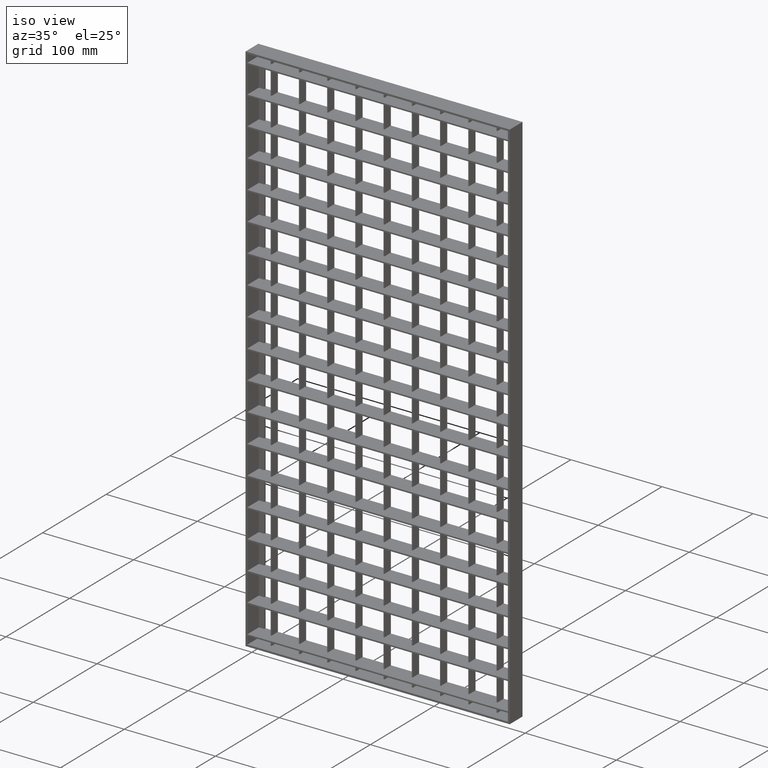
[diagram: clean part render]
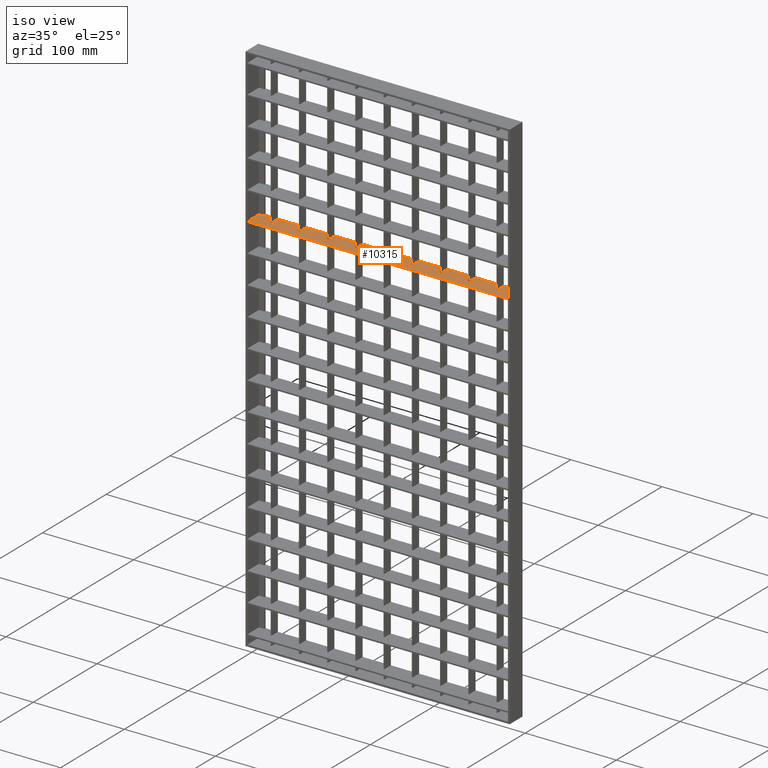
[diagram: same view with one face highlighted and labeled with its STEP entity id]
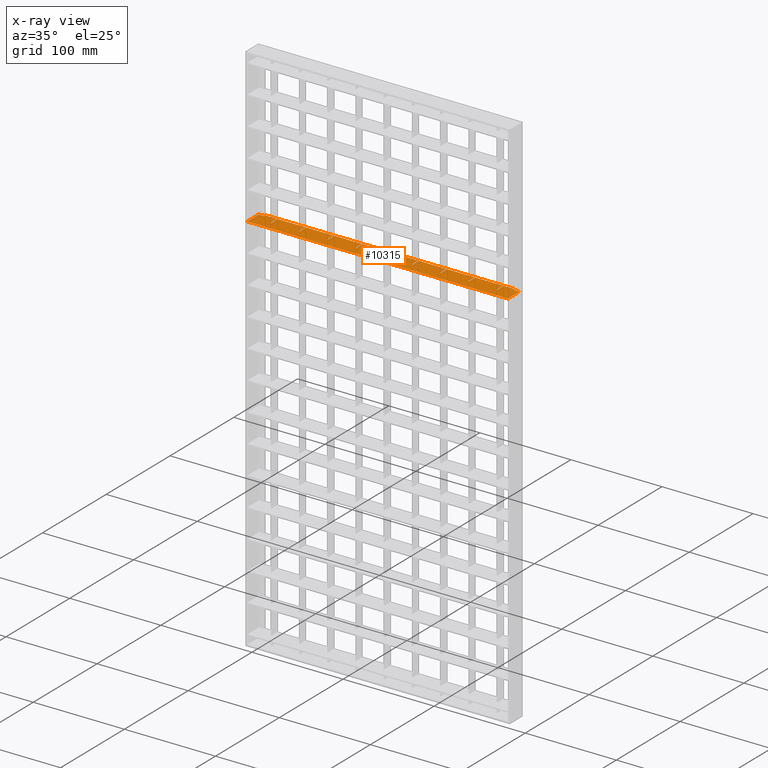
[diagram: x-ray of the same camera — body ghosted, the highlighted face saturated]
A machine part, iso view. The second image highlights one B-rep face of the part: STEP entity #10315.
The next image is the same camera in x-ray: the body ghosted, the highlighted face saturated — about 0% of this face is hidden behind the body in this view.
In plain terms, the highlighted planar face has unit normal (0, 0, 1).
Its self-contained STEP definition (entity closure, byte-faithful):
#80 = ORIENTED_EDGE ( 'NONE', *, *, #14847, .T. ) ;
#142 = VECTOR ( 'NONE', #1532, 1000.000000000000000 ) ;
#154 = EDGE_CURVE ( 'NONE', #15601, #6361, #7639, .T. ) ;
#192 = VECTOR ( 'NONE', #18211, 1000.000000000000000 ) ;
#325 = EDGE_CURVE ( 'NONE', #20120, #10291, #1551, .T. ) ;
#530 = CARTESIAN_POINT ( 'NONE',  ( 268.5000000000000000, -9.999999999999909400, -168.2500000000003400 ) ) ;
#607 = EDGE_LOOP ( 'NONE', ( #24660, #26215, #6078, #15571, #7043, #26415, #20390, #80, #836, #26082, #26241, #8403, #27915, #16220, #24745, #1597, #29179, #976, #21947, #18943, #10121, #4710, #27166, #13976, #11725, #14124, #27331, #22198, #17390, #18745, #13218, #14366, #9556, #4583, #11065, #4587, #15785, #21275, #22678, #2698, #12345, #18394, #28142, #21994 ) ) ;
#709 = LINE ( 'NONE', #4169, #9251 ) ;
#744 = VERTEX_POINT ( 'NONE', #7240 ) ;
#774 = CARTESIAN_POINT ( 'NONE',  ( 175.5000000000000300, 10.00000000000005000, -168.2500000000003400 ) ) ;
#836 = ORIENTED_EDGE ( 'NONE', *, *, #6883, .T. ) ;
#848 = CARTESIAN_POINT ( 'NONE',  ( 238.4999999999999700, -5.233672318667803300E-016, -168.2500000000003400 ) ) ;
#976 = ORIENTED_EDGE ( 'NONE', *, *, #19765, .F. ) ;
#1092 = CARTESIAN_POINT ( 'NONE',  ( 282.0000000000000000, 8.000000000000001800, -168.2500000000003400 ) ) ;
#1270 = DIRECTION ( 'NONE',  ( -1.000000000000000000, 0.0000000000000000000, 0.0000000000000000000 ) ) ;
#1289 = VECTOR ( 'NONE', #15263, 1000.000000000000000 ) ;
#1293 = EDGE_CURVE ( 'NONE', #21539, #3531, #11751, .T. ) ;
#1532 = DIRECTION ( 'NONE',  ( 0.0000000000000000000, -1.000000000000000000, 0.0000000000000000000 ) ) ;
#1551 = LINE ( 'NONE', #25597, #27533 ) ;
#1597 = ORIENTED_EDGE ( 'NONE', *, *, #5656, .T. ) ;
#1715 = VECTOR ( 'NONE', #25379, 1000.000000000000000 ) ;
#1787 = VECTOR ( 'NONE', #24912, 1000.000000000000000 ) ;
#1921 = LINE ( 'NONE', #10024, #5479 ) ;
#1925 = EDGE_CURVE ( 'NONE', #24573, #28682, #20253, .T. ) ;
#2332 = CARTESIAN_POINT ( 'NONE',  ( 288.0000000000000000, -9.999999999999909400, -168.2500000000003400 ) ) ;
#2444 = DIRECTION ( 'NONE',  ( -1.000000000000000000, -3.061616997868382200E-016, 0.0000000000000000000 ) ) ;
#2479 = VERTEX_POINT ( 'NONE', #5062 ) ;
#2557 = LINE ( 'NONE', #10227, #5036 ) ;
#2698 = ORIENTED_EDGE ( 'NONE', *, *, #19205, .T. ) ;
#2710 = CARTESIAN_POINT ( 'NONE',  ( 2.000000000000001800, -10.00000000000000400, -168.2500000000003400 ) ) ;
#3288 = VERTEX_POINT ( 'NONE', #25758 ) ;
#3312 = VECTOR ( 'NONE', #4938, 1000.000000000000000 ) ;
#3441 = EDGE_CURVE ( 'NONE', #6361, #21481, #25132, .T. ) ;
#3521 = DIRECTION ( 'NONE',  ( -1.000000000000000000, 3.061616997868382600E-016, 0.0000000000000000000 ) ) ;
#3531 = VERTEX_POINT ( 'NONE', #22249 ) ;
#3582 = CARTESIAN_POINT ( 'NONE',  ( 20.50000000000001800, 10.00000000000000000, -168.2500000000003400 ) ) ;
#3588 = VECTOR ( 'NONE', #4910, 1000.000000000000000 ) ;
#3639 = EDGE_CURVE ( 'NONE', #10975, #5922, #13697, .T. ) ;
#3740 = CARTESIAN_POINT ( 'NONE',  ( 176.5000000000000300, -9.999999999999909400, -168.2500000000003400 ) ) ;
#3767 = VECTOR ( 'NONE', #2444, 1000.000000000000000 ) ;
#3842 = DIRECTION ( 'NONE',  ( 0.0000000000000000000, -1.000000000000000000, 0.0000000000000000000 ) ) ;
#3866 = CARTESIAN_POINT ( 'NONE',  ( 83.50000000000001400, 0.0000000000000000000, -168.2500000000003400 ) ) ;
#3977 = VECTOR ( 'NONE', #7272, 1000.000000000000000 ) ;
#4169 = CARTESIAN_POINT ( 'NONE',  ( 308.0561711201315800, 8.847089727481716200E-014, -168.2500000000003400 ) ) ;
#4181 = EDGE_CURVE ( 'NONE', #2479, #11437, #9815, .T. ) ;
#4224 = EDGE_CURVE ( 'NONE', #20620, #22049, #27292, .T. ) ;
#4275 = DIRECTION ( 'NONE',  ( 0.0000000000000000000, -1.000000000000000000, 0.0000000000000000000 ) ) ;
#4453 = CARTESIAN_POINT ( 'NONE',  ( 114.5000000000000100, -9.999999999999909400, -168.2500000000003400 ) ) ;
#4557 = CARTESIAN_POINT ( 'NONE',  ( 237.4999999999999700, -2.172055320799417500E-016, -168.2500000000003400 ) ) ;
#4583 = ORIENTED_EDGE ( 'NONE', *, *, #8148, .F. ) ;
#4587 = ORIENTED_EDGE ( 'NONE', *, *, #27990, .F. ) ;
#4629 = LINE ( 'NONE', #15646, #20580 ) ;
#4710 = ORIENTED_EDGE ( 'NONE', *, *, #3639, .F. ) ;
#4891 = CARTESIAN_POINT ( 'NONE',  ( 7.999999999999996400, 8.000000000000001800, -168.2500000000003400 ) ) ;
#4910 = DIRECTION ( 'NONE',  ( 0.0000000000000000000, -1.000000000000000000, 0.0000000000000000000 ) ) ;
#4938 = DIRECTION ( 'NONE',  ( 0.0000000000000000000, -1.000000000000000000, 0.0000000000000000000 ) ) ;
#5036 = VECTOR ( 'NONE', #5478, 1000.000000000000000 ) ;
#5062 = CARTESIAN_POINT ( 'NONE',  ( 288.0000000000000000, -10.00000000000000400, -168.2500000000003400 ) ) ;
#5478 = DIRECTION ( 'NONE',  ( -1.000000000000000000, -3.061616997868382200E-016, 0.0000000000000000000 ) ) ;
#5479 = VECTOR ( 'NONE', #14725, 1000.000000000000000 ) ;
#5549 = LINE ( 'NONE', #25269, #192 ) ;
#5566 = CARTESIAN_POINT ( 'NONE',  ( 145.0000000000000000, 8.000000000000001800, -168.2500000000003400 ) ) ;
#5626 = CARTESIAN_POINT ( 'NONE',  ( 308.0561711201315800, 10.00000000000009100, -168.2500000000003400 ) ) ;
#5630 = CARTESIAN_POINT ( 'NONE',  ( 269.5000000000000000, 10.00000000000000000, -168.2500000000003400 ) ) ;
#5656 = EDGE_CURVE ( 'NONE', #17221, #18092, #26496, .T. ) ;
#5778 = AXIS2_PLACEMENT_3D ( 'NONE', #20608, #6854, #25096 ) ;
#5892 = CARTESIAN_POINT ( 'NONE',  ( 308.0561711201315800, -1.214306433183765000E-014, -168.2500000000003400 ) ) ;
#5916 = EDGE_CURVE ( 'NONE', #27569, #24573, #24626, .T. ) ;
#5922 = VERTEX_POINT ( 'NONE', #27768 ) ;
#6078 = ORIENTED_EDGE ( 'NONE', *, *, #10036, .T. ) ;
#6148 = VERTEX_POINT ( 'NONE', #1092 ) ;
#6181 = VECTOR ( 'NONE', #12557, 1000.000000000000000 ) ;
#6203 = VECTOR ( 'NONE', #28772, 1000.000000000000000 ) ;
#6257 = VERTEX_POINT ( 'NONE', #28649 ) ;
#6310 = VERTEX_POINT ( 'NONE', #10228 ) ;
#6361 = VERTEX_POINT ( 'NONE', #8453 ) ;
#6457 = CARTESIAN_POINT ( 'NONE',  ( 308.0561711201315800, 10.00000000000009100, -168.2500000000003400 ) ) ;
#6523 = LINE ( 'NONE', #12647, #6181 ) ;
#6531 = CARTESIAN_POINT ( 'NONE',  ( 113.5000000000000100, 10.00000000000000000, -168.2500000000003400 ) ) ;
#6547 = DIRECTION ( 'NONE',  ( 1.000000000000000000, 3.061616997868382600E-016, -0.0000000000000000000 ) ) ;
#6573 = VERTEX_POINT ( 'NONE', #16348 ) ;
#6753 = CARTESIAN_POINT ( 'NONE',  ( 21.50000000000001800, 0.0000000000000000000, -168.2500000000003400 ) ) ;
#6796 = DIRECTION ( 'NONE',  ( -1.000000000000000000, -3.061616997868382200E-016, 0.0000000000000000000 ) ) ;
#6854 = DIRECTION ( 'NONE',  ( 0.0000000000000000000, 0.0000000000000000000, 1.000000000000000000 ) ) ;
#6883 = EDGE_CURVE ( 'NONE', #19343, #14222, #17764, .T. ) ;
#6929 = LINE ( 'NONE', #8279, #6203 ) ;
#6995 = VERTEX_POINT ( 'NONE', #6531 ) ;
#7043 = ORIENTED_EDGE ( 'NONE', *, *, #27872, .T. ) ;
#7240 = CARTESIAN_POINT ( 'NONE',  ( 206.5000000000000000, -2.172055320799417500E-016, -168.2500000000003400 ) ) ;
#7272 = DIRECTION ( 'NONE',  ( -0.0000000000000000000, 1.000000000000000000, 0.0000000000000000000 ) ) ;
#7274 = DIRECTION ( 'NONE',  ( 0.0000000000000000000, -1.000000000000000000, 0.0000000000000000000 ) ) ;
#7382 = CARTESIAN_POINT ( 'NONE',  ( 113.5000000000000100, -9.999999999999909400, -168.2500000000003400 ) ) ;
#7436 = EDGE_CURVE ( 'NONE', #16483, #10975, #19876, .T. ) ;
#7474 = DIRECTION ( 'NONE',  ( -1.000000000000000000, -3.061616997868382200E-016, 0.0000000000000000000 ) ) ;
#7505 = CARTESIAN_POINT ( 'NONE',  ( 82.50000000000001400, -9.999999999999909400, -168.2500000000003400 ) ) ;
#7538 = CARTESIAN_POINT ( 'NONE',  ( 175.5000000000000300, -9.999999999999909400, -168.2500000000003400 ) ) ;
#7629 = VERTEX_POINT ( 'NONE', #15754 ) ;
#7639 = LINE ( 'NONE', #7505, #142 ) ;
#7648 = LINE ( 'NONE', #7382, #22540 ) ;
#7772 = LINE ( 'NONE', #23240, #8486 ) ;
#8026 = CARTESIAN_POINT ( 'NONE',  ( 51.49999999999999300, -4.851170219861111800E-016, -168.2500000000003400 ) ) ;
#8049 = CARTESIAN_POINT ( 'NONE',  ( 308.0561711201315800, 10.00000000000009100, -168.2500000000003400 ) ) ;
#8148 = EDGE_CURVE ( 'NONE', #13352, #28457, #28807, .T. ) ;
#8207 = CARTESIAN_POINT ( 'NONE',  ( 51.50000000000002100, 10.00000000000000000, -168.2500000000003400 ) ) ;
#8279 = CARTESIAN_POINT ( 'NONE',  ( 2.000000000000003600, -10.00000000000000000, -168.2500000000003400 ) ) ;
#8306 = LINE ( 'NONE', #11754, #3312 ) ;
#8357 = CARTESIAN_POINT ( 'NONE',  ( 238.4999999999999700, 10.00000000000000000, -168.2500000000003400 ) ) ;
#8403 = ORIENTED_EDGE ( 'NONE', *, *, #17832, .T. ) ;
#8453 = CARTESIAN_POINT ( 'NONE',  ( 82.50000000000001400, 3.322782915218505000E-016, -168.2500000000003400 ) ) ;
#8486 = VECTOR ( 'NONE', #18481, 1000.000000000000000 ) ;
#8538 = DIRECTION ( 'NONE',  ( 1.000000000000000000, 3.061616997868382600E-016, -0.0000000000000000000 ) ) ;
#8598 = FACE_OUTER_BOUND ( 'NONE', #607, .T. ) ;
#8617 = VERTEX_POINT ( 'NONE', #11159 ) ;
#8848 = EDGE_CURVE ( 'NONE', #14525, #18716, #7772, .T. ) ;
#8862 = DIRECTION ( 'NONE',  ( 1.000000000000000000, 3.061616997868382600E-016, -0.0000000000000000000 ) ) ;
#8968 = CARTESIAN_POINT ( 'NONE',  ( 308.0561711201315800, 5.898059818321144100E-014, -168.2500000000003400 ) ) ;
#9006 = VECTOR ( 'NONE', #7274, 1000.000000000000000 ) ;
#9154 = CARTESIAN_POINT ( 'NONE',  ( 308.0561711201315800, -3.122502256758252800E-014, -168.2500000000003400 ) ) ;
#9180 = CARTESIAN_POINT ( 'NONE',  ( 175.5000000000000300, -2.172055320799417500E-016, -168.2500000000003400 ) ) ;
#9251 = VECTOR ( 'NONE', #6547, 1000.000000000000000 ) ;
#9261 = VECTOR ( 'NONE', #26614, 1000.000000000000000 ) ;
#9302 = CARTESIAN_POINT ( 'NONE',  ( 308.0561711201315800, -9.999999999999909400, -168.2500000000003400 ) ) ;
#9448 = EDGE_CURVE ( 'NONE', #11129, #744, #19422, .T. ) ;
#9556 = ORIENTED_EDGE ( 'NONE', *, *, #26574, .T. ) ;
#9583 = EDGE_CURVE ( 'NONE', #7629, #23869, #21156, .T. ) ;
#9815 = LINE ( 'NONE', #9302, #3767 ) ;
#9848 = CARTESIAN_POINT ( 'NONE',  ( 308.0561711201315800, 10.00000000000009100, -168.2500000000003400 ) ) ;
#9855 = CARTESIAN_POINT ( 'NONE',  ( 82.50000000000001400, 10.00000000000000000, -168.2500000000003400 ) ) ;
#10024 = CARTESIAN_POINT ( 'NONE',  ( 145.5000000000000300, -9.999999999999909400, -168.2500000000003400 ) ) ;
#10036 = EDGE_CURVE ( 'NONE', #6310, #21539, #23858, .T. ) ;
#10121 = ORIENTED_EDGE ( 'NONE', *, *, #27762, .T. ) ;
#10151 = VECTOR ( 'NONE', #11636, 1000.000000000000000 ) ;
#10227 = CARTESIAN_POINT ( 'NONE',  ( 308.0561711201315800, 10.00000000000009100, -168.2500000000003400 ) ) ;
#10228 = CARTESIAN_POINT ( 'NONE',  ( 269.5000000000000000, -5.233672318667803300E-016, -168.2500000000003400 ) ) ;
#10291 = VERTEX_POINT ( 'NONE', #4557 ) ;
#10305 = DIRECTION ( 'NONE',  ( -1.000000000000000000, 3.061616997868382600E-016, 0.0000000000000000000 ) ) ;
#10315 = ADVANCED_FACE ( 'NONE', ( #8598 ), #18933, .T. ) ;
#10420 = VERTEX_POINT ( 'NONE', #23705 ) ;
#10425 = CARTESIAN_POINT ( 'NONE',  ( 83.50000000000001400, -9.999999999999909400, -168.2500000000003400 ) ) ;
#10515 = VERTEX_POINT ( 'NONE', #29029 ) ;
#10533 = VECTOR ( 'NONE', #8538, 1000.000000000000000 ) ;
#10665 = VECTOR ( 'NONE', #13464, 1000.000000000000000 ) ;
#10750 = CARTESIAN_POINT ( 'NONE',  ( 2.000000000000003600, 8.000000000000001800, -168.2500000000003400 ) ) ;
#10827 = CARTESIAN_POINT ( 'NONE',  ( 237.5000000000000000, 10.00000000000006900, -168.2500000000003400 ) ) ;
#10959 = CARTESIAN_POINT ( 'NONE',  ( 144.5000000000000300, 2.323454425609482800E-016, -168.2500000000003400 ) ) ;
#10969 = CARTESIAN_POINT ( 'NONE',  ( 308.0561711201315800, 10.00000000000009100, -168.2500000000003400 ) ) ;
#10975 = VERTEX_POINT ( 'NONE', #16693 ) ;
#11065 = ORIENTED_EDGE ( 'NONE', *, *, #27113, .F. ) ;
#11129 = VERTEX_POINT ( 'NONE', #21663 ) ;
#11159 = CARTESIAN_POINT ( 'NONE',  ( 288.0000000000001100, 8.000000000000001800, -168.2500000000002800 ) ) ;
#11195 = DIRECTION ( 'NONE',  ( -0.0000000000000000000, 1.000000000000000000, 0.0000000000000000000 ) ) ;
#11320 = VECTOR ( 'NONE', #8862, 1000.000000000000000 ) ;
#11400 = VERTEX_POINT ( 'NONE', #18182 ) ;
#11437 = VERTEX_POINT ( 'NONE', #2710 ) ;
#11502 = CARTESIAN_POINT ( 'NONE',  ( 51.50000000000004300, -9.999999999999909400, -168.2500000000003400 ) ) ;
#11583 = LINE ( 'NONE', #22329, #1289 ) ;
#11600 = VECTOR ( 'NONE', #22064, 1000.000000000000000 ) ;
#11612 = CARTESIAN_POINT ( 'NONE',  ( 20.50000000000001800, -9.999999999999909400, -168.2500000000003400 ) ) ;
#11636 = DIRECTION ( 'NONE',  ( -1.000000000000000000, 3.061616997868382600E-016, 0.0000000000000000000 ) ) ;
#11725 = ORIENTED_EDGE ( 'NONE', *, *, #20280, .T. ) ;
#11751 = LINE ( 'NONE', #530, #29268 ) ;
#11754 = CARTESIAN_POINT ( 'NONE',  ( 207.5000000000000300, -9.999999999999909400, -168.2500000000003400 ) ) ;
#12273 = VECTOR ( 'NONE', #3842, 1000.000000000000000 ) ;
#12345 = ORIENTED_EDGE ( 'NONE', *, *, #4181, .F. ) ;
#12431 = LINE ( 'NONE', #2332, #3588 ) ;
#12557 = DIRECTION ( 'NONE',  ( -1.000000000000000000, 0.0000000000000000000, 0.0000000000000000000 ) ) ;
#12647 = CARTESIAN_POINT ( 'NONE',  ( 2.000000000000003600, 8.000000000000001800, -168.2500000000003400 ) ) ;
#12802 = CARTESIAN_POINT ( 'NONE',  ( 144.5000000000000300, 10.00000000000000000, -168.2500000000003400 ) ) ;
#12970 = EDGE_CURVE ( 'NONE', #18092, #3288, #5549, .T. ) ;
#13009 = EDGE_CURVE ( 'NONE', #23869, #17221, #22929, .T. ) ;
#13071 = CARTESIAN_POINT ( 'NONE',  ( 20.49999999999996400, 4.322111404827342300E-016, -168.2500000000003400 ) ) ;
#13116 = LINE ( 'NONE', #22425, #1787 ) ;
#13146 = VECTOR ( 'NONE', #13260, 1000.000000000000000 ) ;
#13218 = ORIENTED_EDGE ( 'NONE', *, *, #1925, .F. ) ;
#13260 = DIRECTION ( 'NONE',  ( 1.000000000000000000, 3.061616997868382600E-016, -0.0000000000000000000 ) ) ;
#13352 = VERTEX_POINT ( 'NONE', #6753 ) ;
#13464 = DIRECTION ( 'NONE',  ( -1.000000000000000000, -3.061616997868382200E-016, 0.0000000000000000000 ) ) ;
#13522 = LINE ( 'NONE', #21716, #21709 ) ;
#13697 = LINE ( 'NONE', #4453, #24402 ) ;
#13884 = DIRECTION ( 'NONE',  ( -0.0000000000000000000, -1.000000000000000000, 0.0000000000000000000 ) ) ;
#13976 = ORIENTED_EDGE ( 'NONE', *, *, #18983, .F. ) ;
#14124 = ORIENTED_EDGE ( 'NONE', *, *, #15137, .F. ) ;
#14222 = VERTEX_POINT ( 'NONE', #20955 ) ;
#14366 = ORIENTED_EDGE ( 'NONE', *, *, #5916, .F. ) ;
#14525 = VERTEX_POINT ( 'NONE', #12802 ) ;
#14725 = DIRECTION ( 'NONE',  ( -0.0000000000000000000, 1.000000000000000000, 0.0000000000000000000 ) ) ;
#14847 = EDGE_CURVE ( 'NONE', #10291, #19343, #22788, .T. ) ;
#14923 = VECTOR ( 'NONE', #29046, 1000.000000000000000 ) ;
#15009 = EDGE_CURVE ( 'NONE', #15017, #11400, #2557, .T. ) ;
#15017 = VERTEX_POINT ( 'NONE', #3582 ) ;
#15122 = LINE ( 'NONE', #4891, #17995 ) ;
#15137 = EDGE_CURVE ( 'NONE', #21481, #10515, #20610, .T. ) ;
#15245 = VECTOR ( 'NONE', #20697, 1000.000000000000000 ) ;
#15263 = DIRECTION ( 'NONE',  ( -0.0000000000000000000, 1.000000000000000000, 0.0000000000000000000 ) ) ;
#15571 = ORIENTED_EDGE ( 'NONE', *, *, #1293, .T. ) ;
#15601 = VERTEX_POINT ( 'NONE', #9855 ) ;
#15646 = CARTESIAN_POINT ( 'NONE',  ( 269.5000000000000000, -9.999999999999909400, -168.2500000000003400 ) ) ;
#15754 = CARTESIAN_POINT ( 'NONE',  ( 176.5000000000000300, 10.00000000000000000, -168.2500000000003400 ) ) ;
#15785 = ORIENTED_EDGE ( 'NONE', *, *, #15009, .T. ) ;
#15953 = LINE ( 'NONE', #6457, #10665 ) ;
#15967 = EDGE_CURVE ( 'NONE', #10420, #7629, #15953, .T. ) ;
#15982 = EDGE_CURVE ( 'NONE', #22049, #6310, #4629, .T. ) ;
#16024 = EDGE_CURVE ( 'NONE', #15601, #6573, #13116, .T. ) ;
#16185 = LINE ( 'NONE', #17334, #10533 ) ;
#16220 = ORIENTED_EDGE ( 'NONE', *, *, #9583, .T. ) ;
#16320 = EDGE_CURVE ( 'NONE', #26895, #20120, #29202, .T. ) ;
#16348 = CARTESIAN_POINT ( 'NONE',  ( 52.50000000000005000, 10.00000000000001200, -168.2500000000003400 ) ) ;
#16483 = VERTEX_POINT ( 'NONE', #16918 ) ;
#16490 = DIRECTION ( 'NONE',  ( -0.0000000000000000000, 1.000000000000000000, 0.0000000000000000000 ) ) ;
#16693 = CARTESIAN_POINT ( 'NONE',  ( 114.5000000000000100, 0.0000000000000000000, -168.2500000000003400 ) ) ;
#16918 = CARTESIAN_POINT ( 'NONE',  ( 113.5000000000000100, -5.850498709470072400E-016, -168.2500000000003400 ) ) ;
#16989 = LINE ( 'NONE', #25343, #26659 ) ;
#17019 = VECTOR ( 'NONE', #28229, 1000.000000000000000 ) ;
#17105 = DIRECTION ( 'NONE',  ( -1.000000000000000000, -3.061616997868382200E-016, 0.0000000000000000000 ) ) ;
#17221 = VERTEX_POINT ( 'NONE', #9180 ) ;
#17334 = CARTESIAN_POINT ( 'NONE',  ( 308.0561711201315800, 5.030698080332740600E-014, -168.2500000000003400 ) ) ;
#17390 = ORIENTED_EDGE ( 'NONE', *, *, #16024, .T. ) ;
#17764 = LINE ( 'NONE', #8049, #9261 ) ;
#17832 = EDGE_CURVE ( 'NONE', #744, #10420, #11583, .T. ) ;
#17995 = VECTOR ( 'NONE', #13884, 1000.000000000000000 ) ;
#18092 = VERTEX_POINT ( 'NONE', #774 ) ;
#18117 = LINE ( 'NONE', #20605, #15245 ) ;
#18161 = VECTOR ( 'NONE', #1270, 1000.000000000000000 ) ;
#18182 = CARTESIAN_POINT ( 'NONE',  ( 7.999999999999996400, 10.00000000000000200, -168.2500000000003400 ) ) ;
#18211 = DIRECTION ( 'NONE',  ( -1.000000000000000000, -3.061616997868382200E-016, 0.0000000000000000000 ) ) ;
#18289 = EDGE_CURVE ( 'NONE', #18716, #26636, #16185, .T. ) ;
#18394 = ORIENTED_EDGE ( 'NONE', *, *, #22340, .F. ) ;
#18481 = DIRECTION ( 'NONE',  ( 0.0000000000000000000, -1.000000000000000000, 0.0000000000000000000 ) ) ;
#18716 = VERTEX_POINT ( 'NONE', #10959 ) ;
#18745 = ORIENTED_EDGE ( 'NONE', *, *, #22682, .F. ) ;
#18819 = DIRECTION ( 'NONE',  ( -0.0000000000000000000, 1.000000000000000000, 0.0000000000000000000 ) ) ;
#18933 = PLANE ( 'NONE',  #5778 ) ;
#18943 = ORIENTED_EDGE ( 'NONE', *, *, #8848, .F. ) ;
#18983 = EDGE_CURVE ( 'NONE', #6995, #16483, #7648, .T. ) ;
#19205 = EDGE_CURVE ( 'NONE', #26384, #11437, #6929, .T. ) ;
#19307 = VECTOR ( 'NONE', #7474, 1000.000000000000000 ) ;
#19343 = VERTEX_POINT ( 'NONE', #10827 ) ;
#19393 = CARTESIAN_POINT ( 'NONE',  ( 308.0561711201315800, 6.938893903907228400E-014, -168.2500000000003400 ) ) ;
#19422 = LINE ( 'NONE', #9154, #26904 ) ;
#19669 = EDGE_CURVE ( 'NONE', #6257, #26384, #6523, .T. ) ;
#19765 = EDGE_CURVE ( 'NONE', #26636, #3288, #1921, .T. ) ;
#19876 = LINE ( 'NONE', #8968, #11320 ) ;
#20002 = EDGE_CURVE ( 'NONE', #14222, #11129, #8306, .T. ) ;
#20004 = DIRECTION ( 'NONE',  ( -1.000000000000000000, -3.061616997868382200E-016, 0.0000000000000000000 ) ) ;
#20120 = VERTEX_POINT ( 'NONE', #848 ) ;
#20253 = LINE ( 'NONE', #26729, #13146 ) ;
#20280 = EDGE_CURVE ( 'NONE', #6995, #10515, #24248, .T. ) ;
#20390 = ORIENTED_EDGE ( 'NONE', *, *, #325, .T. ) ;
#20483 = CARTESIAN_POINT ( 'NONE',  ( 308.0561711201315800, -3.989863994746656300E-014, -168.2500000000003400 ) ) ;
#20580 = VECTOR ( 'NONE', #4275, 1000.000000000000000 ) ;
#20605 = CARTESIAN_POINT ( 'NONE',  ( 282.0000000000000000, 8.000000000000001800, -168.2500000000003400 ) ) ;
#20608 = CARTESIAN_POINT ( 'NONE',  ( 308.0561711201315800, -9.999999999999909400, -168.2500000000003400 ) ) ;
#20610 = LINE ( 'NONE', #10425, #14923 ) ;
#20620 = VERTEX_POINT ( 'NONE', #23513 ) ;
#20697 = DIRECTION ( 'NONE',  ( 0.0000000000000000000, 1.000000000000000000, -0.0000000000000000000 ) ) ;
#20785 = CARTESIAN_POINT ( 'NONE',  ( 21.50000000000001800, -9.999999999999909400, -168.2500000000003400 ) ) ;
#20834 = EDGE_CURVE ( 'NONE', #8617, #6148, #28170, .T. ) ;
#20888 = LINE ( 'NONE', #27179, #26276 ) ;
#20928 = CARTESIAN_POINT ( 'NONE',  ( 145.5000000000000300, 0.0000000000000000000, -168.2500000000003400 ) ) ;
#20955 = CARTESIAN_POINT ( 'NONE',  ( 207.5000000000000000, 10.00000000000000000, -168.2500000000003400 ) ) ;
#21156 = LINE ( 'NONE', #3740, #12273 ) ;
#21275 = ORIENTED_EDGE ( 'NONE', *, *, #28966, .T. ) ;
#21481 = VERTEX_POINT ( 'NONE', #3866 ) ;
#21517 = VECTOR ( 'NONE', #20004, 1000.000000000000000 ) ;
#21539 = VERTEX_POINT ( 'NONE', #22411 ) ;
#21598 = LINE ( 'NONE', #11612, #28432 ) ;
#21663 = CARTESIAN_POINT ( 'NONE',  ( 207.5000000000000000, -5.233672318667803300E-016, -168.2500000000003400 ) ) ;
#21707 = VECTOR ( 'NONE', #3521, 1000.000000000000000 ) ;
#21709 = VECTOR ( 'NONE', #24013, 1000.000000000000000 ) ;
#21716 = CARTESIAN_POINT ( 'NONE',  ( 52.50000000000005000, -9.999999999999909400, -168.2500000000003400 ) ) ;
#21947 = ORIENTED_EDGE ( 'NONE', *, *, #18289, .F. ) ;
#21954 = CARTESIAN_POINT ( 'NONE',  ( 176.5000000000000300, -5.233672318667803300E-016, -168.2500000000003400 ) ) ;
#21994 = ORIENTED_EDGE ( 'NONE', *, *, #27157, .T. ) ;
#22049 = VERTEX_POINT ( 'NONE', #5630 ) ;
#22064 = DIRECTION ( 'NONE',  ( 1.000000000000000000, 3.061616997868382600E-016, -0.0000000000000000000 ) ) ;
#22198 = ORIENTED_EDGE ( 'NONE', *, *, #154, .F. ) ;
#22249 = CARTESIAN_POINT ( 'NONE',  ( 268.5000000000000000, 10.00000000000007800, -168.2500000000003400 ) ) ;
#22268 = DIRECTION ( 'NONE',  ( -1.000000000000000000, 3.061616997868382600E-016, 0.0000000000000000000 ) ) ;
#22329 = CARTESIAN_POINT ( 'NONE',  ( 206.5000000000000300, -9.999999999999909400, -168.2500000000003400 ) ) ;
#22340 = EDGE_CURVE ( 'NONE', #8617, #2479, #12431, .T. ) ;
#22411 = CARTESIAN_POINT ( 'NONE',  ( 268.5000000000000000, -2.172055320799417500E-016, -168.2500000000003400 ) ) ;
#22425 = CARTESIAN_POINT ( 'NONE',  ( 308.0561711201315800, 10.00000000000009100, -168.2500000000003400 ) ) ;
#22540 = VECTOR ( 'NONE', #28265, 1000.000000000000000 ) ;
#22678 = ORIENTED_EDGE ( 'NONE', *, *, #19669, .T. ) ;
#22682 = EDGE_CURVE ( 'NONE', #28682, #6573, #13522, .T. ) ;
#22788 = LINE ( 'NONE', #23426, #3977 ) ;
#22929 = LINE ( 'NONE', #20483, #10151 ) ;
#23014 = CARTESIAN_POINT ( 'NONE',  ( 21.50000000000007500, 10.00000000000000200, -168.2500000000003400 ) ) ;
#23240 = CARTESIAN_POINT ( 'NONE',  ( 144.5000000000000300, -9.999999999999909400, -168.2500000000003400 ) ) ;
#23426 = CARTESIAN_POINT ( 'NONE',  ( 237.5000000000000000, -9.999999999999909400, -168.2500000000003400 ) ) ;
#23513 = CARTESIAN_POINT ( 'NONE',  ( 282.0000000000000000, 10.00000000000000200, -168.2500000000003400 ) ) ;
#23697 = CARTESIAN_POINT ( 'NONE',  ( 52.50000000000005000, 0.0000000000000000000, -168.2500000000003400 ) ) ;
#23705 = CARTESIAN_POINT ( 'NONE',  ( 206.5000000000000300, 10.00000000000005900, -168.2500000000003400 ) ) ;
#23858 = LINE ( 'NONE', #5892, #21707 ) ;
#23869 = VERTEX_POINT ( 'NONE', #21954 ) ;
#23891 = VECTOR ( 'NONE', #17105, 1000.000000000000000 ) ;
#24013 = DIRECTION ( 'NONE',  ( -0.0000000000000000000, 1.000000000000000000, 0.0000000000000000000 ) ) ;
#24248 = LINE ( 'NONE', #5626, #23891 ) ;
#24341 = VECTOR ( 'NONE', #18819, 1000.000000000000000 ) ;
#24402 = VECTOR ( 'NONE', #11195, 1000.000000000000000 ) ;
#24573 = VERTEX_POINT ( 'NONE', #8026 ) ;
#24626 = LINE ( 'NONE', #11502, #9006 ) ;
#24660 = ORIENTED_EDGE ( 'NONE', *, *, #4224, .T. ) ;
#24745 = ORIENTED_EDGE ( 'NONE', *, *, #13009, .T. ) ;
#24912 = DIRECTION ( 'NONE',  ( -1.000000000000000000, -3.061616997868382200E-016, 0.0000000000000000000 ) ) ;
#25096 = DIRECTION ( 'NONE',  ( 1.000000000000000000, 0.0000000000000000000, -0.0000000000000000000 ) ) ;
#25132 = LINE ( 'NONE', #19393, #11600 ) ;
#25239 = DIRECTION ( 'NONE',  ( -1.000000000000000000, -3.061616997868382200E-016, 0.0000000000000000000 ) ) ;
#25269 = CARTESIAN_POINT ( 'NONE',  ( 308.0561711201315800, 10.00000000000009100, -168.2500000000003400 ) ) ;
#25343 = CARTESIAN_POINT ( 'NONE',  ( 308.0561711201315800, 10.00000000000009100, -168.2500000000003400 ) ) ;
#25349 = LINE ( 'NONE', #9848, #19307 ) ;
#25379 = DIRECTION ( 'NONE',  ( -0.0000000000000000000, 1.000000000000000000, 0.0000000000000000000 ) ) ;
#25495 = CARTESIAN_POINT ( 'NONE',  ( 238.5000000000000000, -9.999999999999909400, -168.2500000000003400 ) ) ;
#25597 = CARTESIAN_POINT ( 'NONE',  ( 308.0561711201315800, -2.081668171172168500E-014, -168.2500000000003400 ) ) ;
#25758 = CARTESIAN_POINT ( 'NONE',  ( 145.5000000000000300, 10.00000000000004100, -168.2500000000003400 ) ) ;
#26082 = ORIENTED_EDGE ( 'NONE', *, *, #20002, .T. ) ;
#26215 = ORIENTED_EDGE ( 'NONE', *, *, #15982, .T. ) ;
#26241 = ORIENTED_EDGE ( 'NONE', *, *, #9448, .T. ) ;
#26276 = VECTOR ( 'NONE', #6796, 1000.000000000000000 ) ;
#26384 = VERTEX_POINT ( 'NONE', #10750 ) ;
#26415 = ORIENTED_EDGE ( 'NONE', *, *, #16320, .T. ) ;
#26496 = LINE ( 'NONE', #7538, #24341 ) ;
#26574 = EDGE_CURVE ( 'NONE', #27569, #28457, #25349, .T. ) ;
#26614 = DIRECTION ( 'NONE',  ( -1.000000000000000000, -3.061616997868382200E-016, 0.0000000000000000000 ) ) ;
#26636 = VERTEX_POINT ( 'NONE', #20928 ) ;
#26659 = VECTOR ( 'NONE', #25239, 1000.000000000000000 ) ;
#26729 = CARTESIAN_POINT ( 'NONE',  ( 308.0561711201315800, 7.806255641895631900E-014, -168.2500000000003400 ) ) ;
#26895 = VERTEX_POINT ( 'NONE', #8357 ) ;
#26904 = VECTOR ( 'NONE', #22268, 1000.000000000000000 ) ;
#26914 = VERTEX_POINT ( 'NONE', #13071 ) ;
#27113 = EDGE_CURVE ( 'NONE', #26914, #13352, #709, .T. ) ;
#27157 = EDGE_CURVE ( 'NONE', #6148, #20620, #18117, .T. ) ;
#27166 = ORIENTED_EDGE ( 'NONE', *, *, #7436, .F. ) ;
#27179 = CARTESIAN_POINT ( 'NONE',  ( 308.0561711201315800, 10.00000000000009100, -168.2500000000003400 ) ) ;
#27292 = LINE ( 'NONE', #10969, #21517 ) ;
#27331 = ORIENTED_EDGE ( 'NONE', *, *, #3441, .F. ) ;
#27533 = VECTOR ( 'NONE', #10305, 1000.000000000000000 ) ;
#27569 = VERTEX_POINT ( 'NONE', #8207 ) ;
#27581 = DIRECTION ( 'NONE',  ( 0.0000000000000000000, -1.000000000000000000, 0.0000000000000000000 ) ) ;
#27762 = EDGE_CURVE ( 'NONE', #14525, #5922, #20888, .T. ) ;
#27768 = CARTESIAN_POINT ( 'NONE',  ( 114.5000000000000100, 10.00000000000003200, -168.2500000000003400 ) ) ;
#27872 = EDGE_CURVE ( 'NONE', #3531, #26895, #16989, .T. ) ;
#27915 = ORIENTED_EDGE ( 'NONE', *, *, #15967, .T. ) ;
#27990 = EDGE_CURVE ( 'NONE', #15017, #26914, #21598, .T. ) ;
#28142 = ORIENTED_EDGE ( 'NONE', *, *, #20834, .T. ) ;
#28170 = LINE ( 'NONE', #5566, #18161 ) ;
#28229 = DIRECTION ( 'NONE',  ( 0.0000000000000000000, -1.000000000000000000, 0.0000000000000000000 ) ) ;
#28265 = DIRECTION ( 'NONE',  ( 0.0000000000000000000, -1.000000000000000000, 0.0000000000000000000 ) ) ;
#28432 = VECTOR ( 'NONE', #27581, 1000.000000000000000 ) ;
#28457 = VERTEX_POINT ( 'NONE', #23014 ) ;
#28649 = CARTESIAN_POINT ( 'NONE',  ( 7.999999999999996400, 8.000000000000001800, -168.2500000000003400 ) ) ;
#28682 = VERTEX_POINT ( 'NONE', #23697 ) ;
#28772 = DIRECTION ( 'NONE',  ( -0.0000000000000000000, -1.000000000000000000, 0.0000000000000000000 ) ) ;
#28807 = LINE ( 'NONE', #20785, #1715 ) ;
#28966 = EDGE_CURVE ( 'NONE', #11400, #6257, #15122, .T. ) ;
#29029 = CARTESIAN_POINT ( 'NONE',  ( 83.50000000000001400, 10.00000000000002100, -168.2500000000003400 ) ) ;
#29046 = DIRECTION ( 'NONE',  ( -0.0000000000000000000, 1.000000000000000000, 0.0000000000000000000 ) ) ;
#29179 = ORIENTED_EDGE ( 'NONE', *, *, #12970, .T. ) ;
#29202 = LINE ( 'NONE', #25495, #17019 ) ;
#29268 = VECTOR ( 'NONE', #16490, 1000.000000000000000 ) ;